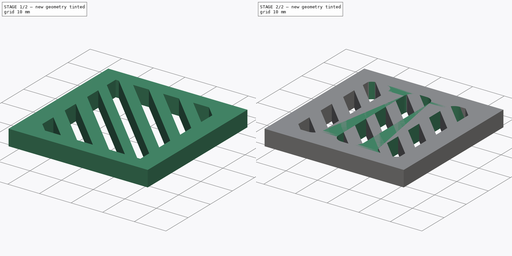
[diagram: build sequence overview — one tinted view per stage of 2, left to right]
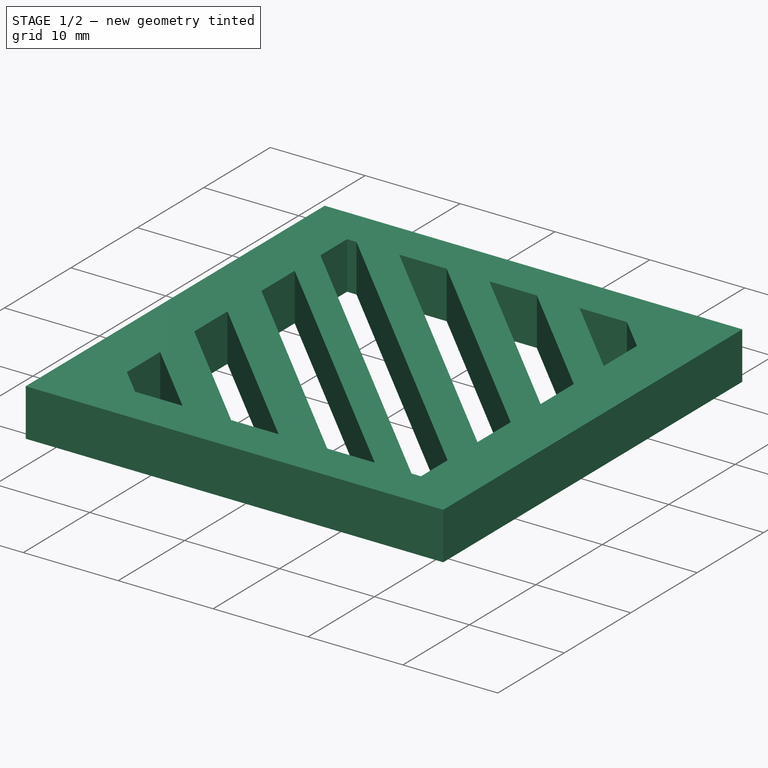
[diagram: stage 1 of 2 — iso view after this stage's code; geometry added in this stage tinted green]
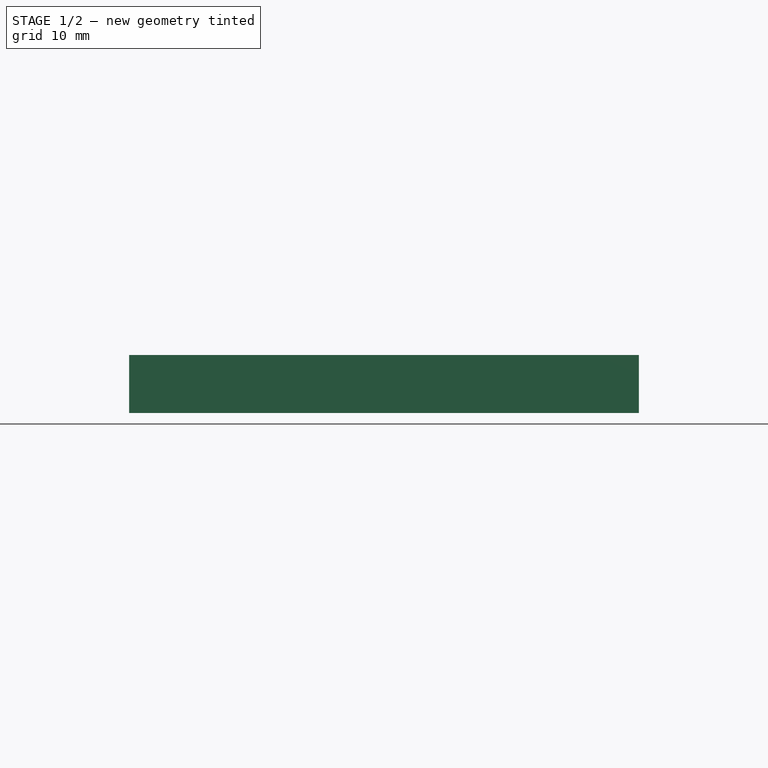
[diagram: stage 1 of 2 — front view after this stage's code; geometry added in this stage tinted green]
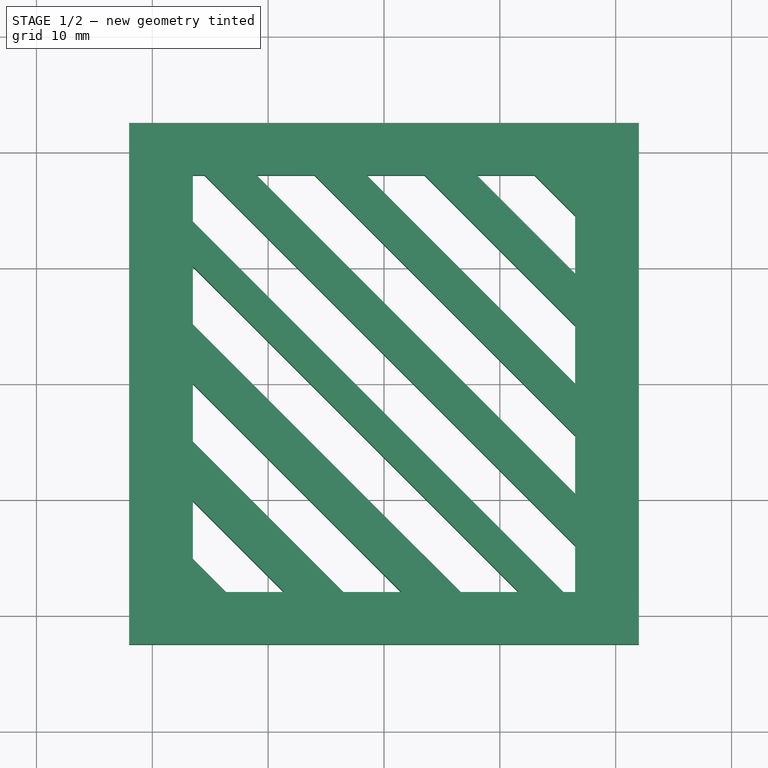
[diagram: stage 1 of 2 — top view after this stage's code; geometry added in this stage tinted green]
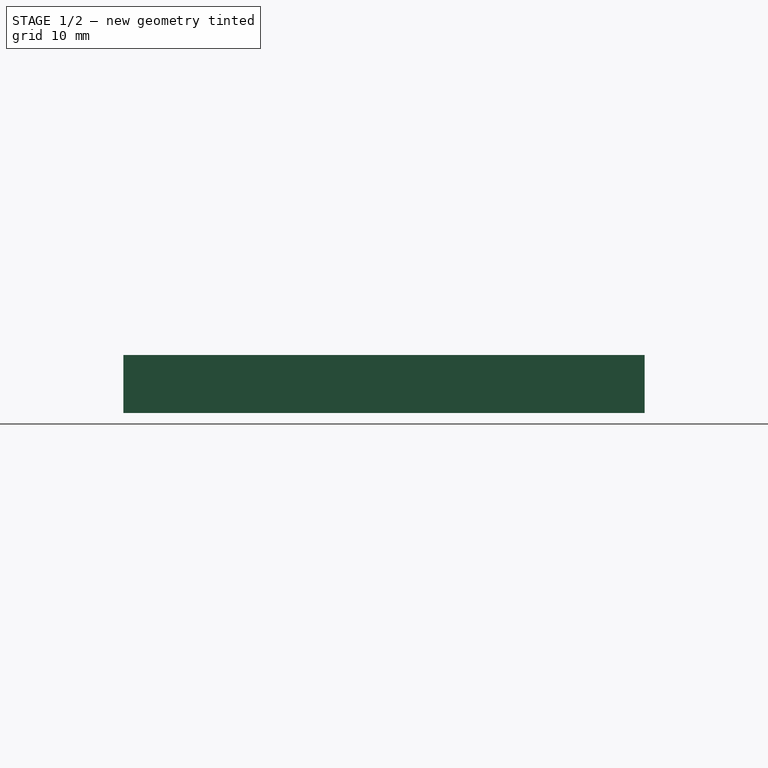
[diagram: stage 1 of 2 — right view after this stage's code; geometry added in this stage tinted green]
FCSTD DOCUMENT  (FreeCAD 0.20R29603 (Git))
Label: HyperdriveStructureMode
License: All rights reserved
LicenseURL: http://en.wikipedia.org/wiki/All_rights_reserved
objects: Sketcher::SketchObject×3, PartDesign::Pad×3, PartDesign::Body×3, Spreadsheet::Sheet×1
note: 12 computed .brp shape members not serialized (recipe doc carries the construction recipe); baked Part::Feature solids carry a one-line shape summary decoded from their .brp

FEATURE [PartDesign::Body] Body  label="VerticalHoles"
  Group = -> [Sketch,Pad]
  Origin = -> Origin
  Tip = -> Pad
FEATURE [Sketcher::SketchObject] Sketch001
  FullyConstrained = true
  MapMode = 5
  Support = -> [XY_Plane001]
  sketch-geometry (46):
    g0: LineSegment StartX=-22 StartY=22.5 StartZ=0 EndX=-22 EndY=-22.5 EndZ=0
    g1: LineSegment StartX=-22 StartY=-22.5 StartZ=0 EndX=22 EndY=-22.5 EndZ=0
    g2: LineSegment StartX=22 StartY=-22.5 StartZ=0 EndX=22 EndY=22.5 EndZ=0
    g3: LineSegment StartX=22 StartY=22.5 StartZ=0 EndX=-22 EndY=22.5 EndZ=0
    g4: GeomPoint X=0 Y=0 Z=0
    g5: LineSegment StartX=-19 StartY=-16.5 StartZ=0 EndX=-19 EndY=-19 EndZ=0
    g6: LineSegment StartX=-19 StartY=-19 StartZ=0 EndX=-16.5 EndY=-19 EndZ=0
    g7: LineSegment StartX=-16.5 StartY=-19 StartZ=0 EndX=-19 EndY=-16.5 EndZ=0
    g8: LineSegment StartX=-19 StartY=-7.625 StartZ=0 EndX=-19 EndY=-12.625 EndZ=0
    g9: LineSegment StartX=-19 StartY=-12.625 StartZ=0 EndX=-12.625 EndY=-19 EndZ=0
    g10: LineSegment StartX=-12.625 StartY=-19 StartZ=0 EndX=-7.625 EndY=-19 EndZ=0
    g11: LineSegment StartX=-7.625 StartY=-19 StartZ=0 EndX=-19 EndY=-7.625 EndZ=0
    g12: LineSegment StartX=-19 StartY=2.5 StartZ=0 EndX=-19 EndY=-2.5 EndZ=0
    g13: LineSegment StartX=-19 StartY=-2.5 StartZ=0 EndX=-2.5 EndY=-19 EndZ=0
    g14: LineSegment StartX=-2.5 StartY=-19 StartZ=0 EndX=2.5 EndY=-19 EndZ=0
    g15: LineSegment StartX=2.5 StartY=-19 StartZ=0 EndX=-19 EndY=2.5 EndZ=0
    g16: LineSegment StartX=-19 StartY=12.625 StartZ=0 EndX=-19 EndY=7.625 EndZ=0
    g17: LineSegment StartX=-19 StartY=7.625 StartZ=0 EndX=7.625 EndY=-19 EndZ=0
    g18: LineSegment StartX=7.625 StartY=-19 StartZ=0 EndX=12.625 EndY=-19 EndZ=0
    g19: LineSegment StartX=12.625 StartY=-19 StartZ=0 EndX=-19 EndY=12.625 EndZ=0
    g20: LineSegment StartX=-19 StartY=19 StartZ=0 EndX=-19 EndY=16.5 EndZ=0
    g21: LineSegment StartX=-19 StartY=16.5 StartZ=0 EndX=16.5 EndY=-19 EndZ=0
    g22: LineSegment StartX=16.5 StartY=-19 StartZ=0 EndX=19 EndY=-19 EndZ=0
    g23: LineSegment StartX=19 StartY=-19 StartZ=0 EndX=19 EndY=-16.5 EndZ=0
    g24: LineSegment StartX=19 StartY=-16.5 StartZ=0 EndX=-16.5 EndY=19 EndZ=0
    g25: LineSegment StartX=-16.5 StartY=19 StartZ=0 EndX=-19 EndY=19 EndZ=0
    g26: LineSegment StartX=-12 StartY=19 StartZ=0 EndX=19 EndY=-12 EndZ=0
    g27: LineSegment StartX=19 StartY=-12 StartZ=0 EndX=19 EndY=-7 EndZ=0
    g28: LineSegment StartX=19 StartY=-7 StartZ=0 EndX=-7 EndY=19 EndZ=0
    g29: LineSegment StartX=-7 StartY=19 StartZ=0 EndX=-12 EndY=19 EndZ=0
    g30: LineSegment StartX=-2.5 StartY=19 StartZ=0 EndX=19 EndY=-2.5 EndZ=0
    g31: LineSegment StartX=19 StartY=-2.5 StartZ=0 EndX=19 EndY=2.5 EndZ=0
    g32: LineSegment StartX=19 StartY=2.5 StartZ=0 EndX=2.5 EndY=19 EndZ=0
    g33: LineSegment StartX=2.5 StartY=19 StartZ=0 EndX=-2.5 EndY=19 EndZ=0
    g34: LineSegment StartX=7 StartY=19 StartZ=0 EndX=19 EndY=7 EndZ=0
    g35: LineSegment StartX=19 StartY=7 StartZ=0 EndX=19 EndY=12 EndZ=0
    g36: LineSegment StartX=19 StartY=12 StartZ=0 EndX=12 EndY=19 EndZ=0
    g37: LineSegment StartX=12 StartY=19 StartZ=0 EndX=7 EndY=19 EndZ=0
    g38: LineSegment StartX=16.5 StartY=19 StartZ=0 EndX=19 EndY=16.5 EndZ=0
    g39: LineSegment StartX=19 StartY=16.5 StartZ=0 EndX=19 EndY=19 EndZ=0
    g40: LineSegment StartX=19 StartY=19 StartZ=0 EndX=16.5 EndY=19 EndZ=0
    g41: LineSegment StartX=-19 StartY=19 StartZ=0 EndX=-19 EndY=-19 EndZ=0
    g42: LineSegment StartX=-19 StartY=-19 StartZ=0 EndX=19 EndY=-19 EndZ=0
    g43: LineSegment StartX=19 StartY=-19 StartZ=0 EndX=19 EndY=19 EndZ=0
    g44: LineSegment StartX=19 StartY=19 StartZ=0 EndX=-19 EndY=19 EndZ=0
    g45: GeomPoint X=0 Y=0 Z=0
  constraints (120):
    c: Coincident(g0,g1)
    c: Coincident(g1,g2)
    c: Coincident(g2,g3)
    c: Coincident(g3,g0)
    c: Horizontal(g1)
    c: Horizontal(g3)
    c: Vertical(g0)
    c: Vertical(g2)
    c: Symmetric(g1,g0,g4)
    c: Coincident(g4,g-1)
    c: DistanceX(g3,g3) = 44
    c: DistanceY(g2,g2) = 45
    c: Vertical(g5)
    c: Coincident(g5,g6)
    c: Horizontal(g6)
    c: Coincident(g6,g7)
    c: Coincident(g7,g5)
    c: Coincident(g8,g9)
    c: Coincident(g9,g10)
    c: Coincident(g10,g11)
    c: Coincident(g8,g11)
    c: Coincident(g12,g13)
    c: Coincident(g13,g14)
    c: Coincident(g14,g15)
    c: Coincident(g15,g12)
    c: Vertical(g16)
    c: Coincident(g16,g17)
    c: Coincident(g17,g18)
    c: Horizontal(g18)
    c: Coincident(g18,g19)
    c: Coincident(g19,g16)
    c: Vertical(g20)
    c: Coincident(g20,g21)
    c: Coincident(g21,g22)
    c: Horizontal(g22)
    c: Coincident(g22,g23)
    c: Vertical(g23)
    c: Coincident(g23,g24)
    c: Coincident(g24,g25)
    c: Coincident(g25,g20)
    c: Horizontal(g25)
    c: Coincident(g26,g27)
    c: Vertical(g27)
    c: Coincident(g27,g28)
    c: Coincident(g28,g29)
    c: Coincident(g29,g26)
    c: Coincident(g30,g31)
    c: Coincident(g31,g32)
    c: Coincident(g32,g33)
    c: Coincident(g33,g30)
    c: Coincident(g34,g35)
    c: Coincident(g35,g36)
    c: Coincident(g36,g37)
    c: Horizontal(g37)
    c: Coincident(g38,g39)
    c: Vertical(g39)
    c: Coincident(g39,g40)
    c: Coincident(g40,g38)
    c: Horizontal(g40)
    c: Coincident(g41,g42)
    c: Coincident(g42,g43)
    c: Coincident(g43,g44)
    c: Coincident(g44,g41)
    c: Horizontal(g42)
    c: Horizontal(g44)
    c: Vertical(g41)
    c: Vertical(g43)
    c: Symmetric(g42,g41,g45)
    c: Coincident(g45,g4)
    c: DistanceX(g42,g42) = 38
    c: DistanceY(g41,g41) = 38
    c: PointOnObject(g12,g41)
    c: PointOnObject(g16,g41)
    c: PointOnObject(g20,g41)
    c: PointOnObject(g17,g42)
    c: PointOnObject(g23,g43)
    c: PointOnObject(g27,g43)
    c: PointOnObject(g38,g44)
    c: PointOnObject(g34,g44)
    c: PointOnObject(g30,g44)
    c: Coincident(g37,g34)
    c: Symmetric(g14,g13,g-2)
    c: PointOnObject(g13,g42)
    c: Symmetric(g10,g17,g-2)
    c: Symmetric(g9,g18,g-2)
    c: Symmetric(g32,g30,g-2)
    c: Symmetric(g34,g28,g-2)
    c: Symmetric(g26,g36,g-2)
    c: Symmetric(g12,g12,g-1)
    c: Symmetric(g8,g16,g-1)
    c: Symmetric(g8,g16,g-1)
    c: Symmetric(g30,g31,g-1)
    c: PointOnObject(g31,g43)
    c: Symmetric(g27,g34,g-1)
    c: Symmetric(g35,g26,g-1)
    c: Equal(g10,g14)
    c: Equal(g8,g12)
    c: PointOnObject(g6,g42)
    c: Parallel(g7,g9)
    c: Angle(g9) = -0.785398
    c: Parallel(g21,g24)
    c: Parallel(g28,g21)
    c: DistanceX(g40,g40) = 2.5
    c: DistanceX(g6,g6) = 2.5
    c: DistanceX(g36,g38) = 4.5
    c: DistanceX(g6,g9) = 3.875
    c: DistanceX(g25,g25) = 2.5
    c: PointOnObject(g24,g44)
    c: DistanceY(g20,g20) = 2.5
    c: PointOnObject(g21,g42)
    c: DistanceX(g22,g22) = 2.5
    c: PointOnObject(g5,g41)
    c: PointOnObject(g38,g43)
    c: DistanceY(g39,g39) = 2.5
    c: Equal(g29,g33)
    c: DistanceX(g33,g33) = 5
    c: Equal(g27,g31)
    c: DistanceY(g31,g31) = 5
    c: DistanceX(g14,g14) = 5
    c: DistanceY(g12,g12) = 5
FEATURE [PartDesign::Pad] Pad001
  Direction = (0,0,1)
  Length = 5
  Length2 = 10
  Profile = -> Sketch001
  ReferenceAxis = -> Sketch001 [N_Axis]
  Type = 0
FEATURE [PartDesign::Body] Body001  label="DiagonalHoles"
  Group = -> [Sketch001,Pad001]
  Origin = -> Origin001
  Tip = -> Pad001
FEATURE [Sketcher::SketchObject] Sketch002
  FullyConstrained = true
  MapMode = 5
  Support = -> [XY_Plane002]
  sketch-geometry (10):
    g0: LineSegment StartX=-21 StartY=22 StartZ=0 EndX=-21 EndY=-22 EndZ=0
    g1: LineSegment StartX=-21 StartY=-22 StartZ=0 EndX=21 EndY=-22 EndZ=0
    g2: LineSegment StartX=21 StartY=-22 StartZ=0 EndX=21 EndY=22 EndZ=0
    g3: LineSegment StartX=21 StartY=22 StartZ=0 EndX=-21 EndY=22 EndZ=0
    g4: GeomPoint X=0 Y=0 Z=0
    g5: LineSegment StartX=-16.5 StartY=18 StartZ=0 EndX=-16.5 EndY=-18 EndZ=0
    g6: LineSegment StartX=-16.5 StartY=-18 StartZ=0 EndX=16.5 EndY=-18 EndZ=0
    g7: LineSegment StartX=16.5 StartY=-18 StartZ=0 EndX=16.5 EndY=18 EndZ=0
    g8: LineSegment StartX=16.5 StartY=18 StartZ=0 EndX=-16.5 EndY=18 EndZ=0
    g9: GeomPoint X=0 Y=0 Z=0
  constraints (24):
    c: Coincident(g0,g1)
    c: Coincident(g1,g2)
    c: Coincident(g2,g3)
    c: Coincident(g3,g0)
    c: Horizontal(g1)
    c: Horizontal(g3)
    c: Vertical(g0)
    c: Vertical(g2)
    c: Symmetric(g1,g0,g4)
    c: Coincident(g4,g-1)
    c: DistanceX(g3,g3) = 42
    c: DistanceY(g2,g2) = 44
    c: Coincident(g5,g6)
    c: Coincident(g6,g7)
    c: Coincident(g7,g8)
    c: Coincident(g8,g5)
    c: Horizontal(g6)
    c: Horizontal(g8)
    c: Vertical(g5)
    c: Vertical(g7)
    c: Symmetric(g6,g5,g9)
    c: Coincident(g9,g4)
    c: DistanceX(g8,g8) = 33
    c: DistanceY(g7,g7) = 36
FEATURE [PartDesign::Pad] Pad002
  Direction = (0,0,1)
  Length = 5
  Length2 = 10
  Profile = -> Sketch002
  ReferenceAxis = -> Sketch002 [N_Axis]
  Type = 0
FEATURE [PartDesign::Body] Body002  label="FullHole"
  Group = -> [Sketch002,Pad002]
  Origin = -> Origin002
  Tip = -> Pad002
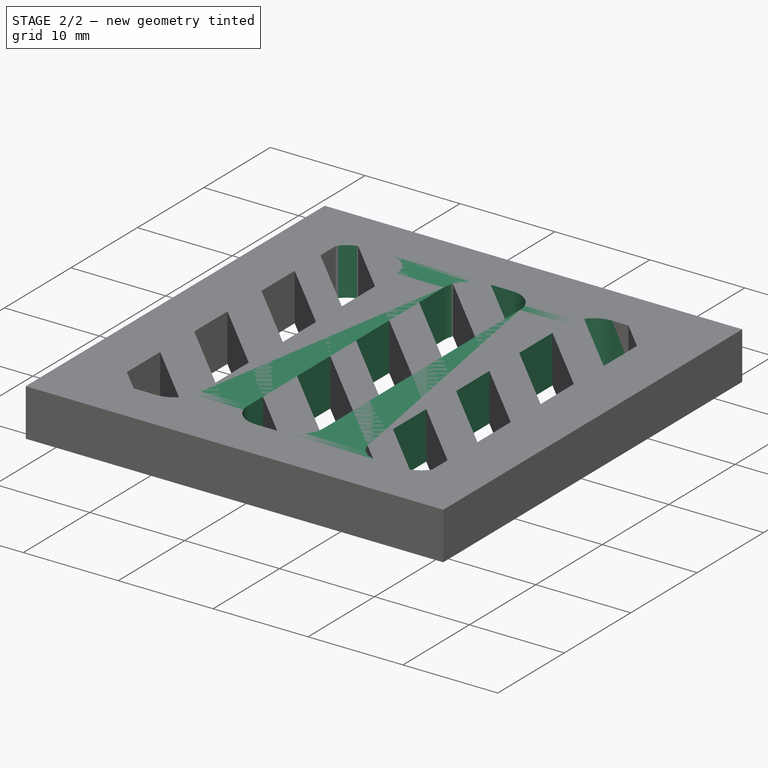
[diagram: stage 2 of 2 — iso view after this stage's code; geometry added in this stage tinted green]
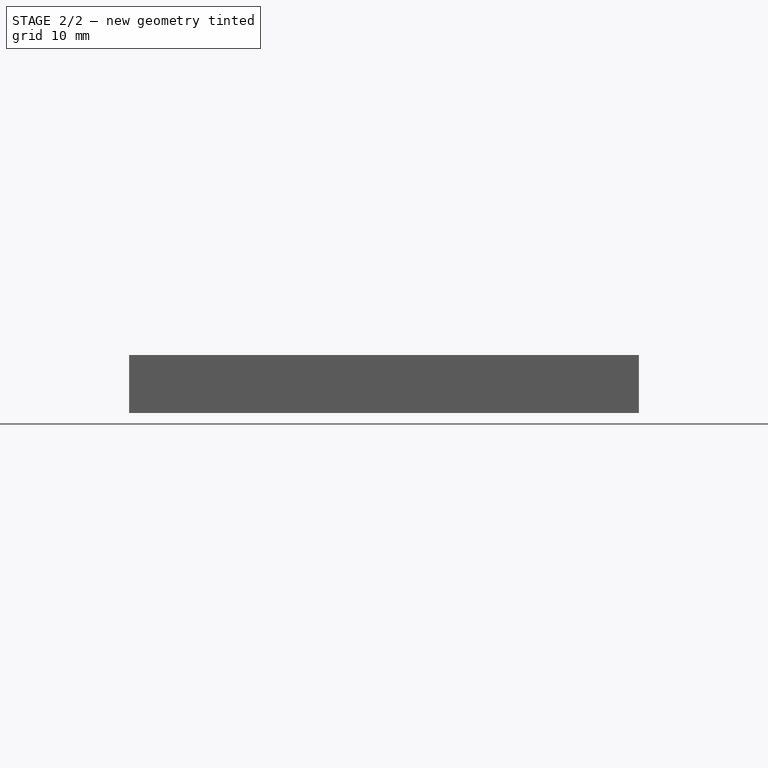
[diagram: stage 2 of 2 — front view after this stage's code; geometry added in this stage tinted green]
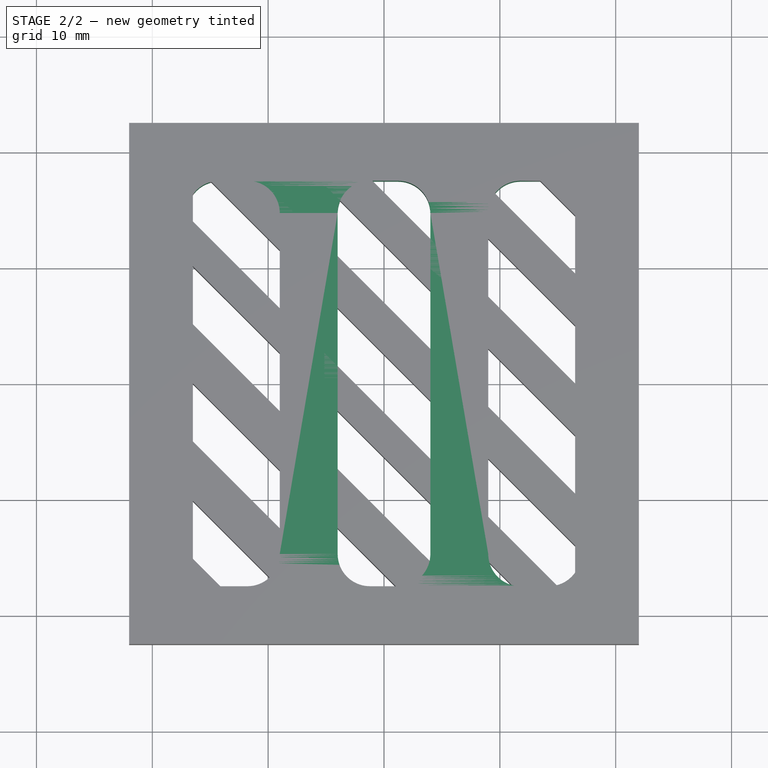
[diagram: stage 2 of 2 — top view after this stage's code; geometry added in this stage tinted green]
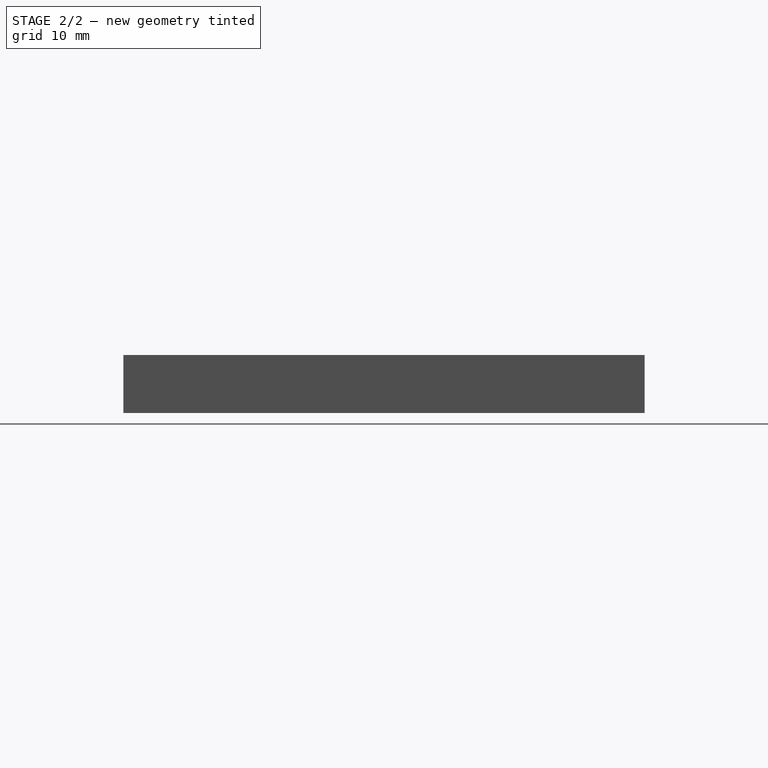
[diagram: stage 2 of 2 — right view after this stage's code; geometry added in this stage tinted green]
FEATURE [Sketcher::SketchObject] Sketch
  FullyConstrained = true
  MapMode = 5
  Support = -> [XY_Plane]
  expr: Constraints[69] = <<Vars>>.width
  expr: Constraints[70] = <<Vars>>.width
  expr: Constraints[71] = <<Vars>>.width
  expr: Constraints[74] = <<Vars>>.width
  expr: Constraints[75] = <<Vars>>.width
  expr: Constraints[76] = <<Vars>>.width
  sketch-geometry (35):
    g0: LineSegment StartX=-22 StartY=22.5 StartZ=0 EndX=-22 EndY=-22.5 EndZ=0
    g1: LineSegment StartX=-22 StartY=-22.5 StartZ=0 EndX=22 EndY=-22.5 EndZ=0
    g2: LineSegment StartX=22 StartY=-22.5 StartZ=0 EndX=22 EndY=22.5 EndZ=0
    g3: LineSegment StartX=22 StartY=22.5 StartZ=0 EndX=-22 EndY=22.5 EndZ=0
    g4: GeomPoint X=0 Y=0 Z=0
    g5: ArcOfCircle CenterX=-14.22 CenterY=14.72 CenterZ=0 NormalX=0 NormalY=0 NormalZ=1 AngleXU=0 Radius=2.78 StartAngle=1.5708 EndAngle=3.14159
    g6: LineSegment StartX=-14.22 StartY=17.5 StartZ=0 EndX=-11.78 EndY=17.5 EndZ=0
    g7: ArcOfCircle CenterX=-11.78 CenterY=14.72 CenterZ=0 NormalX=0 NormalY=0 NormalZ=1 AngleXU=0 Radius=2.78 StartAngle=0 EndAngle=1.5708
    g8: LineSegment StartX=-9 StartY=14.72 StartZ=0 EndX=-9 EndY=-14.72 EndZ=0
    g9: ArcOfCircle CenterX=-11.78 CenterY=-14.72 CenterZ=0 NormalX=0 NormalY=0 NormalZ=1 AngleXU=0 Radius=2.78 StartAngle=4.71239 EndAngle=6.28319
    g10: LineSegment StartX=-11.78 StartY=-17.5 StartZ=0 EndX=-14.22 EndY=-17.5 EndZ=0
    g11: ArcOfCircle CenterX=-14.22 CenterY=-14.72 CenterZ=0 NormalX=0 NormalY=0 NormalZ=1 AngleXU=0 Radius=2.78 StartAngle=3.14159 EndAngle=4.71239
    g12: LineSegment StartX=-17 StartY=-14.72 StartZ=0 EndX=-17 EndY=14.72 EndZ=0
    g13: GeomPoint X=-17 Y=17.5 Z=0
    g14: GeomPoint X=-9 Y=-17.5 Z=0
    g15: ArcOfCircle CenterX=-1.22 CenterY=14.72 CenterZ=0 NormalX=0 NormalY=0 NormalZ=1 AngleXU=0 Radius=2.78 StartAngle=1.5708 EndAngle=3.14159
    g16: LineSegment StartX=-1.22 StartY=17.5 StartZ=0 EndX=1.22 EndY=17.5 EndZ=0
    g17: ArcOfCircle CenterX=1.22 CenterY=14.72 CenterZ=0 NormalX=0 NormalY=0 NormalZ=1 AngleXU=0 Radius=2.78 StartAngle=0 EndAngle=1.5708
    g18: LineSegment StartX=4 StartY=14.72 StartZ=0 EndX=4 EndY=-14.72 EndZ=0
    g19: ArcOfCircle CenterX=1.22 CenterY=-14.72 CenterZ=0 NormalX=0 NormalY=0 NormalZ=1 AngleXU=0 Radius=2.78 StartAngle=4.71239 EndAngle=6.28319
    g20: LineSegment StartX=1.22 StartY=-17.5 StartZ=0 EndX=-1.22 EndY=-17.5 EndZ=0
    g21: ArcOfCircle CenterX=-1.22 CenterY=-14.72 CenterZ=0 NormalX=0 NormalY=0 NormalZ=1 AngleXU=0 Radius=2.78 StartAngle=3.14159 EndAngle=4.71239
    g22: LineSegment StartX=-4 StartY=-14.72 StartZ=0 EndX=-4 EndY=14.72 EndZ=0
    g23: GeomPoint X=-4 Y=17.5 Z=0
    g24: GeomPoint X=4 Y=-17.5 Z=0
    g25: ArcOfCircle CenterX=11.78 CenterY=14.72 CenterZ=0 NormalX=0 NormalY=0 NormalZ=1 AngleXU=0 Radius=2.78 StartAngle=1.5708 EndAngle=3.14159
    g26: LineSegment StartX=11.78 StartY=17.5 StartZ=0 EndX=14.22 EndY=17.5 EndZ=0
    g27: ArcOfCircle CenterX=14.22 CenterY=14.72 CenterZ=0 NormalX=0 NormalY=0 NormalZ=1 AngleXU=0 Radius=2.78 StartAngle=6e-16 EndAngle=1.5708
    g28: LineSegment StartX=17 StartY=14.72 StartZ=0 EndX=17 EndY=-14.72 EndZ=0
    g29: ArcOfCircle CenterX=14.22 CenterY=-14.72 CenterZ=0 NormalX=0 NormalY=0 NormalZ=1 AngleXU=0 Radius=2.78 StartAngle=4.71239 EndAngle=6.28319
    g30: LineSegment StartX=14.22 StartY=-17.5 StartZ=0 EndX=11.78 EndY=-17.5 EndZ=0
    g31: ArcOfCircle CenterX=11.78 CenterY=-14.72 CenterZ=0 NormalX=0 NormalY=0 NormalZ=1 AngleXU=0 Radius=2.78 StartAngle=3.14159 EndAngle=4.71239
    g32: LineSegment StartX=9 StartY=-14.72 StartZ=0 EndX=9 EndY=14.72 EndZ=0
    g33: GeomPoint X=9 Y=17.5 Z=0
    g34: GeomPoint X=17 Y=-17.5 Z=0
  constraints (84):
    c: Coincident(g0,g1)
    c: Coincident(g1,g2)
    c: Coincident(g2,g3)
    c: Coincident(g3,g0)
    c: Horizontal(g1)
    c: Horizontal(g3)
    c: Vertical(g0)
    c: Vertical(g2)
    c: Symmetric(g1,g0,g4)
    c: Coincident(g4,g-1)
    c: DistanceX(g3,g3) = 44
    c: DistanceY(g2,g2) = 45
    c: Tangent(g5,g6) = 1.5708
    c: Tangent(g6,g7) = 1.5708
    c: Tangent(g7,g8) = 1.5708
    c: Tangent(g8,g9) = 1.5708
    c: Tangent(g9,g10) = 1.5708
    c: Tangent(g10,g11) = 1.5708
    c: Tangent(g11,g12) = 1.5708
    c: Tangent(g12,g5) = 1.5708
    c: Horizontal(g6)
    c: Horizontal(g10)
    c: Vertical(g8)
    c: Vertical(g12)
    c: Equal(g5,g7)
    c: Equal(g7,g9)
    c: Equal(g9,g11)
    c: PointOnObject(g13,g6)
    c: PointOnObject(g13,g12)
    c: PointOnObject(g14,g8)
    c: PointOnObject(g14,g10)
    c: Tangent(g15,g16) = 1.5708
    c: Tangent(g16,g17) = 1.5708
    c: Tangent(g17,g18) = 1.5708
    c: Tangent(g18,g19) = 1.5708
    c: Tangent(g19,g20) = 1.5708
    c: Tangent(g20,g21) = 1.5708
    c: Tangent(g21,g22) = 1.5708
    c: Tangent(g22,g15) = 1.5708
    c: Horizontal(g16)
    c: Horizontal(g20)
    c: Vertical(g18)
    c: Vertical(g22)
    c: Equal(g15,g17)
    c: Equal(g17,g19)
    c: Equal(g19,g21)
    c: PointOnObject(g23,g16)
    c: PointOnObject(g23,g22)
    c: PointOnObject(g24,g18)
    c: PointOnObject(g24,g20)
    c: Tangent(g25,g26) = 1.5708
    c: Tangent(g26,g27) = 1.5708
    c: Tangent(g27,g28) = 1.5708
    c: Tangent(g28,g29) = 1.5708
    c: Tangent(g29,g30) = 1.5708
    c: Tangent(g30,g31) = 1.5708
    c: Tangent(g31,g32) = 1.5708
    c: Tangent(g32,g25) = 1.5708
    c: Horizontal(g26)
    c: Horizontal(g30)
    c: Vertical(g28)
    c: Vertical(g32)
    c: Equal(g25,g27)
    c: Equal(g27,g29)
    c: Equal(g29,g31)
    c: PointOnObject(g33,g26)
    c: PointOnObject(g33,g32)
    c: PointOnObject(g34,g28)
    c: PointOnObject(g34,g30)
    c: DistanceX(g0,g13) = 5
    c: DistanceY(g13,g0) = 5
    c: DistanceY(g0,g10) = 5
    c: Horizontal(g5,g15)
    c: Horizontal(g25,g5)
    c: DistanceX(g7,g15) = 5
    c: DistanceX(g17,g25) = 5
    c: DistanceX(g27,g2) = 5
    c: Horizontal(g10,g20)
    c: Horizontal(g20,g30)
    c: Horizontal(g31,g18)
    c: Horizontal(g21,g8)
    c: Equal(g16,g26)
    c: Equal(g16,g6)
    c: DistanceX(g13,g5) = 2.78
FEATURE [Spreadsheet::Sheet] Spreadsheet  label="Vars"
  cells = A2=width; B2(width)=5
FEATURE [PartDesign::Pad] Pad
  Direction = (0,0,1)
  Length = 5
  Length2 = 10
  Profile = -> Sketch
  ReferenceAxis = -> Sketch [N_Axis]
  Type = 0
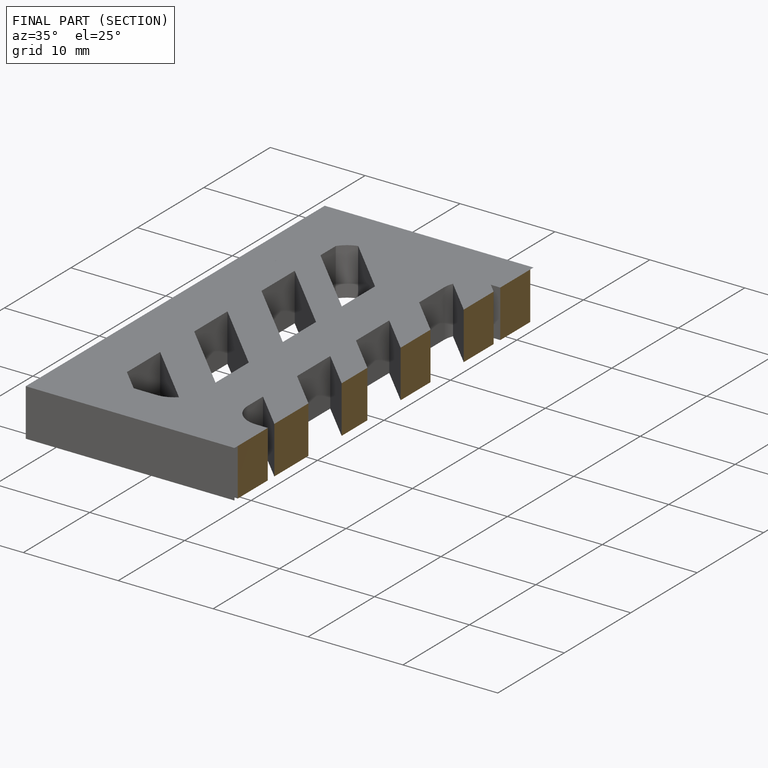
[diagram: finished part — half-section view (interior)]
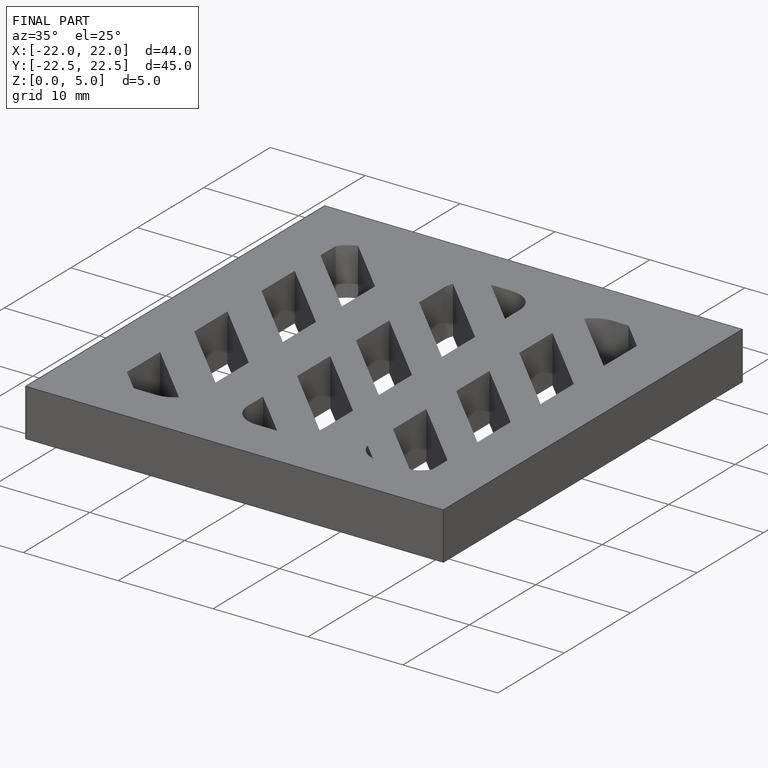
[diagram: finished part — iso view with bounding-box wireframe]
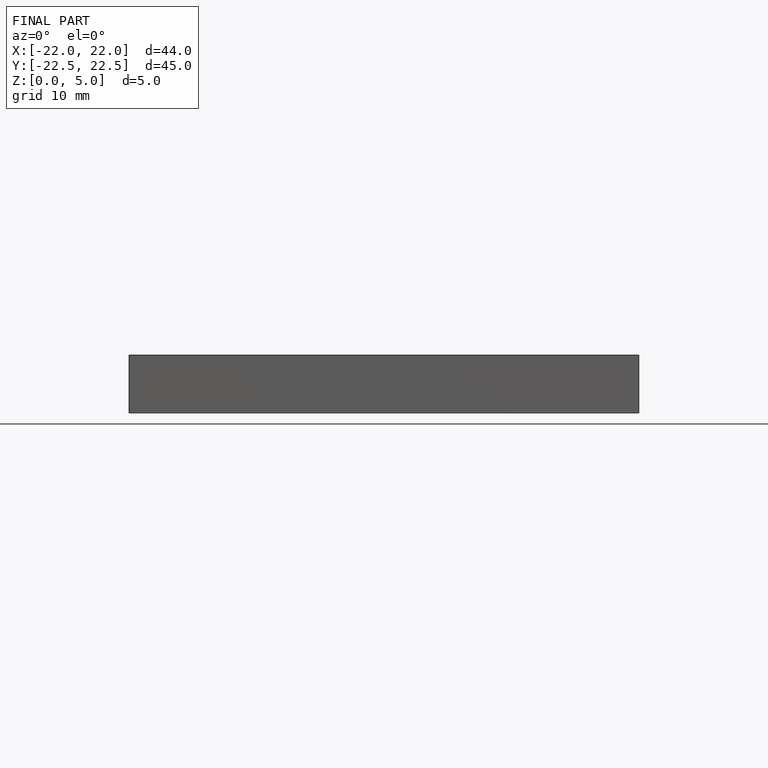
[diagram: finished part — front view with bounding-box wireframe]
